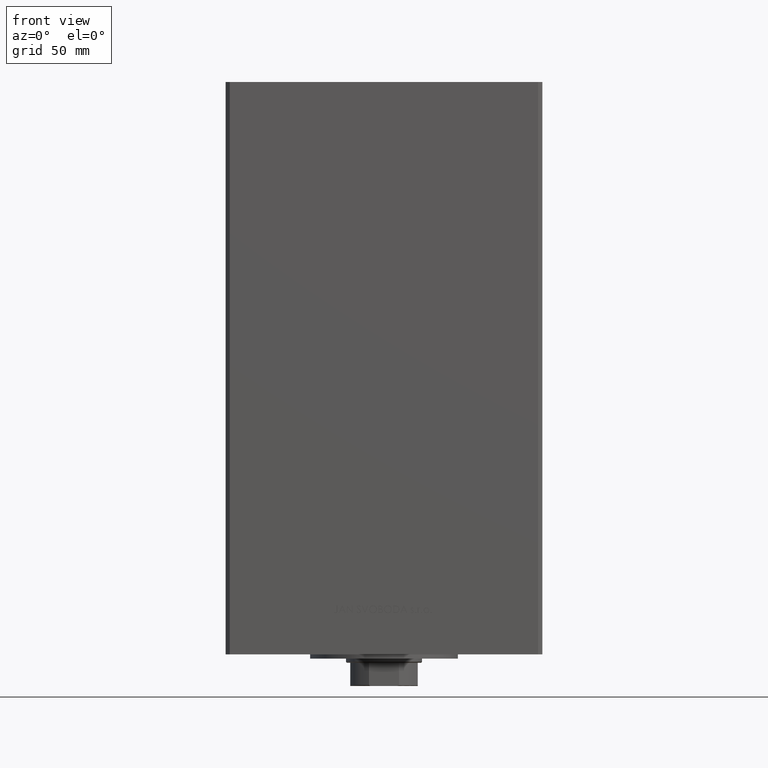
[diagram: clean part render]
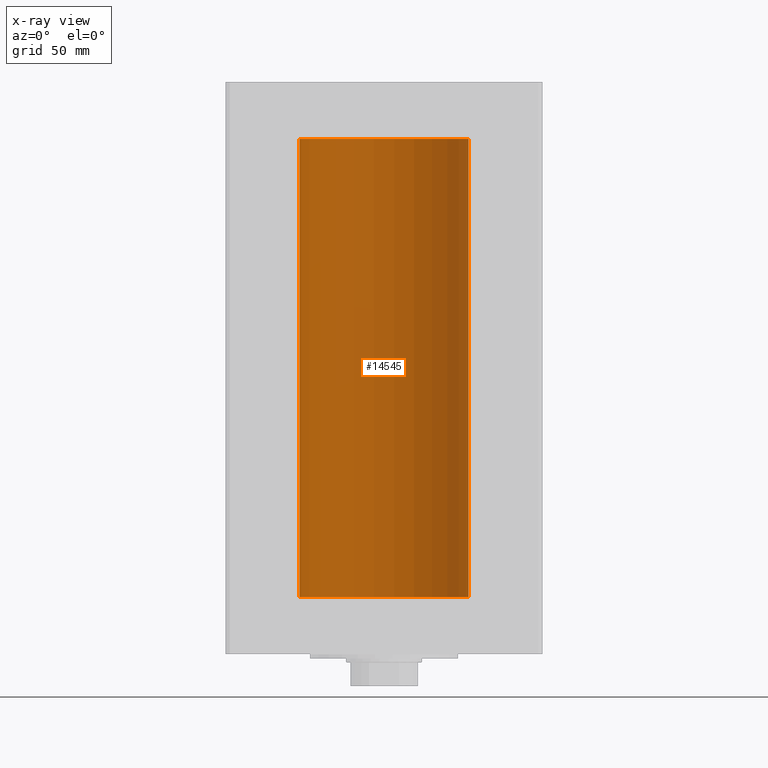
[diagram: x-ray — body ghosted, one internal face saturated and labeled with its STEP entity id]
A machine part, front view, then the same camera in x-ray: the body is ghosted and one INTERNAL B-rep face — a face not visible from any outside direction — is saturated and labeled: STEP entity #14545.
In plain terms, the highlighted cylindrical surface (partial cylindrical patch) has radius 40 mm, axis along (-0, -0, -1).
Its self-contained STEP definition (entity closure, byte-faithful):
#201 = ORIENTED_EDGE ( 'NONE', *, *, #17874, .T. ) ;
#2356 = CARTESIAN_POINT ( 'NONE',  ( 40.00000000000000000, 4.898587196589413026E-15, 217.0000000000000000 ) ) ;
#3390 = CARTESIAN_POINT ( 'NONE',  ( 0.000000000000000000, 0.000000000000000000, 217.0000000000000000 ) ) ;
#4755 = EDGE_CURVE ( 'NONE', #44153, #7923, #6934, .T. ) ;
#6066 = LINE ( 'NONE', #2356, #16302 ) ;
#6934 = CIRCLE ( 'NONE', #43296, 40.00000000000000000 ) ;
#7923 = VERTEX_POINT ( 'NONE', #16301 ) ;
#14545 = ADVANCED_FACE ( 'NONE', ( #33706 ), #15144, .F. ) ;
#14654 = CARTESIAN_POINT ( 'NONE',  ( -40.00000000000000000, 0.000000000000000000, 217.0000000000000000 ) ) ;
#14780 = DIRECTION ( 'NONE',  ( -0.000000000000000000, 0.000000000000000000, 1.000000000000000000 ) ) ;
#15144 = CYLINDRICAL_SURFACE ( 'NONE', #46637, 40.00000000000000000 ) ;
#16301 = CARTESIAN_POINT ( 'NONE',  ( -40.00000000000000000, 0.000000000000000000, 0.000000000000000000 ) ) ;
#16302 = VECTOR ( 'NONE', #32563, 1000.000000000000000 ) ;
#17874 = EDGE_CURVE ( 'NONE', #45839, #18706, #41929, .T. ) ;
#18106 = ORIENTED_EDGE ( 'NONE', *, *, #33090, .T. ) ;
#18466 = ORIENTED_EDGE ( 'NONE', *, *, #4755, .F. ) ;
#18606 = CARTESIAN_POINT ( 'NONE',  ( -40.00000000000000000, 0.000000000000000000, 217.0000000000000000 ) ) ;
#18706 = VERTEX_POINT ( 'NONE', #18606 ) ;
#19397 = CARTESIAN_POINT ( 'NONE',  ( 40.00000000000000000, 4.898587196589413026E-15, 0.000000000000000000 ) ) ;
#20604 = AXIS2_PLACEMENT_3D ( 'NONE', #3390, #33351, #22208 ) ;
#22208 = DIRECTION ( 'NONE',  ( 1.000000000000000000, 0.000000000000000000, 0.000000000000000000 ) ) ;
#24607 = ORIENTED_EDGE ( 'NONE', *, *, #39456, .F. ) ;
#24629 = EDGE_LOOP ( 'NONE', ( #24607, #201, #18106, #18466 ) ) ;
#26782 = DIRECTION ( 'NONE',  ( -0.000000000000000000, -0.000000000000000000, -1.000000000000000000 ) ) ;
#29898 = DIRECTION ( 'NONE',  ( 1.000000000000000000, 0.000000000000000000, 0.000000000000000000 ) ) ;
#30254 = DIRECTION ( 'NONE',  ( -1.000000000000000000, 0.000000000000000000, 0.000000000000000000 ) ) ;
#32519 = CARTESIAN_POINT ( 'NONE',  ( 40.00000000000000000, 4.898587196589413026E-15, 217.0000000000000000 ) ) ;
#32563 = DIRECTION ( 'NONE',  ( -0.000000000000000000, -0.000000000000000000, -1.000000000000000000 ) ) ;
#33090 = EDGE_CURVE ( 'NONE', #18706, #7923, #33705, .T. ) ;
#33351 = DIRECTION ( 'NONE',  ( -0.000000000000000000, 0.000000000000000000, 1.000000000000000000 ) ) ;
#33705 = LINE ( 'NONE', #14654, #45434 ) ;
#33706 = FACE_OUTER_BOUND ( 'NONE', #24629, .T. ) ;
#33951 = CARTESIAN_POINT ( 'NONE',  ( 0.000000000000000000, 0.000000000000000000, 217.0000000000000000 ) ) ;
#37417 = DIRECTION ( 'NONE',  ( -0.000000000000000000, -0.000000000000000000, -1.000000000000000000 ) ) ;
#39456 = EDGE_CURVE ( 'NONE', #45839, #44153, #6066, .T. ) ;
#41929 = CIRCLE ( 'NONE', #20604, 40.00000000000000000 ) ;
#43296 = AXIS2_PLACEMENT_3D ( 'NONE', #44721, #14780, #29898 ) ;
#44153 = VERTEX_POINT ( 'NONE', #19397 ) ;
#44721 = CARTESIAN_POINT ( 'NONE',  ( 0.000000000000000000, 0.000000000000000000, 0.000000000000000000 ) ) ;
#45434 = VECTOR ( 'NONE', #37417, 1000.000000000000000 ) ;
#45839 = VERTEX_POINT ( 'NONE', #32519 ) ;
#46637 = AXIS2_PLACEMENT_3D ( 'NONE', #33951, #26782, #30254 ) ;